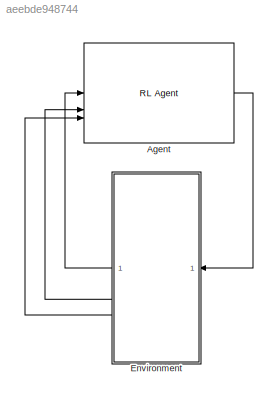
MODEL slx_aeebde948744
KIND model
CONFIG AbsTol = auto
CONFIG EnableMultiTasking = off
CONFIG FixedStep = auto
CONFIG MaxStep = auto
CONFIG MinStep = auto
CONFIG RelTol = 1e-3
CONFIG SampleTimeConstraint = Unconstrained
CONFIG SolverName = VariableStepAuto
CONFIG StartTime = 0.0
CONFIG StopTime = 10
BLOCK [Reference] Agent  REF=rllib/RL Agent
  SourceBlock = rllib/RL Agent
  SourceType = RL Agent
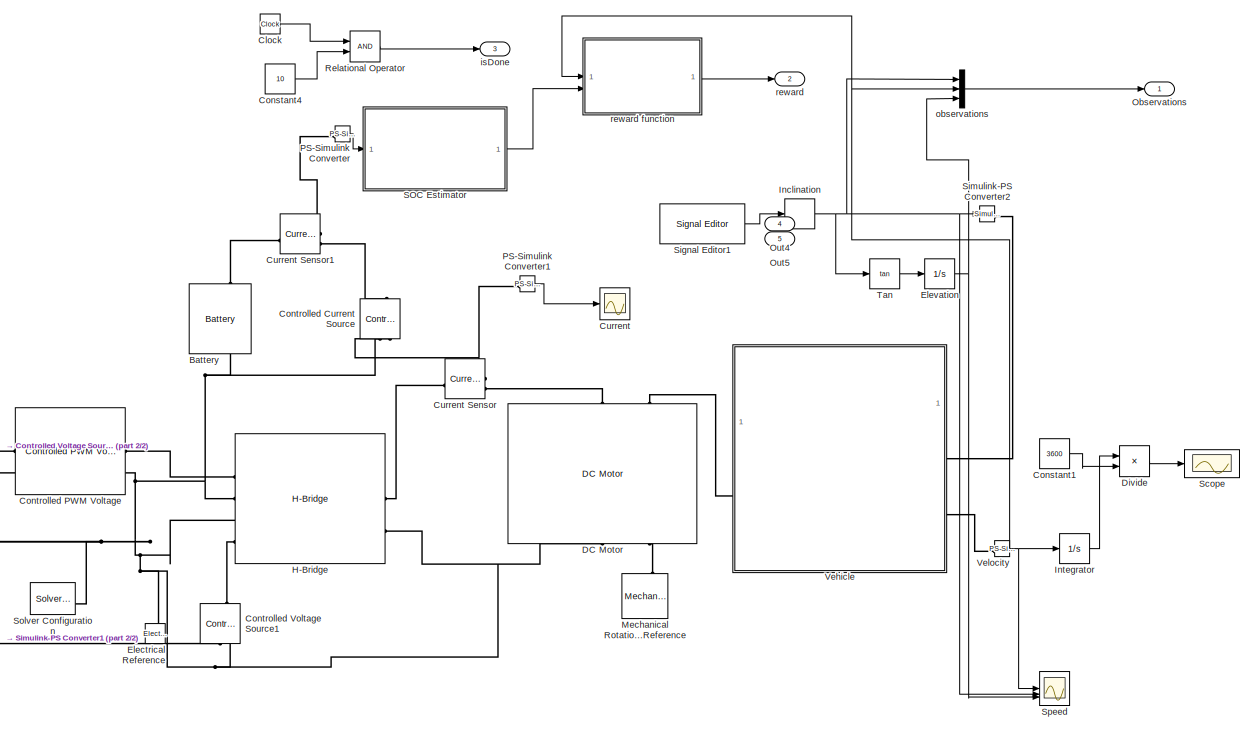
[diagram: Environment - part 1/2, most of the canvas]
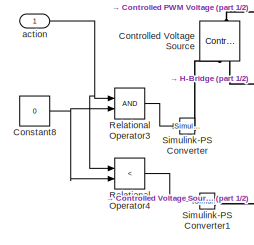
[diagram: Environment - part 2/2, bottom left region]
BLOCK [SubSystem] Environment
BLOCK [Reference] Environment/Battery  REF=batteryecm_lib/Battery
  LibrarySourceBlock = ee_lib/Sources/Battery
  NameLocation = right
  SourceBlock = batteryecm_lib/Battery
  SourceType = Battery
BLOCK [Clock] Environment/Clock
BLOCK [Constant] Environment/Constant1
  Value = 3600
BLOCK [Constant] Environment/Constant4
  Value = 10
BLOCK [Constant] Environment/Constant8
  Value = 0
BLOCK [Reference] Environment/Controlled Current Source  REF=fl_lib/Electrical/Electrical Sources/Controlled Current
Source
  NameLocation = right
  SourceBlock = fl_lib/Electrical/Electrical Sources/Controlled Current\nSource
  SourceType = Controlled Current\nSource
BLOCK [Reference] Environment/Controlled PWM Voltage  REF=ee_lib/Integrated Circuits/Controlled PWM
Voltage
  SourceBlock = ee_lib/Integrated Circuits/Controlled PWM\nVoltage
  SourceType = Controlled PWM\nVoltage
BLOCK [Reference] Environment/Controlled Voltage Source  REF=fl_lib/Electrical/Electrical Sources/Controlled Voltage
Source
  NameLocation = right
  SourceBlock = fl_lib/Electrical/Electrical Sources/Controlled Voltage\nSource
  SourceType = Controlled Voltage\nSource
BLOCK [Reference] Environment/Controlled Voltage Source1  REF=fl_lib/Electrical/Electrical Sources/Controlled Voltage
Source
  NameLocation = right
  SourceBlock = fl_lib/Electrical/Electrical Sources/Controlled Voltage\nSource
  SourceType = Controlled Voltage\nSource
BLOCK [Scope] Environment/Current
  Floating = off
  NumInputPorts = 1
  ScopeSpecificationString = Simulink.scopes.TimeScopeBlockCfg('CurrentConfiguration', extmgr.ConfigurationSet(extmgr.Configuration('Core','General UI',true),extmgr.Configuration('Core','Source UI',true),extmgr.Configuration('Sources','WiredSimulink',true,'DataLoggingVariableName','ScopeData2'),extmgr.Configuration('Visuals','Time Domain',true,'SerializedDisplays',{struct('MinYLimReal','-165.98887','MaxYLimReal','881.02361','...<+1422ch>
BLOCK [Reference] Environment/Current Sensor  REF=fl_lib/Electrical/Electrical Sensors/Current Sensor
  SourceBlock = fl_lib/Electrical/Electrical Sensors/Current Sensor
  SourceType = Current Sensor
BLOCK [Reference] Environment/Current Sensor1  REF=fl_lib/Electrical/Electrical Sensors/Current Sensor
  SourceBlock = fl_lib/Electrical/Electrical Sensors/Current Sensor
  SourceType = Current Sensor
BLOCK [Reference] Environment/DC Motor  REF=ee_lib/Electromechanical/Brushed Motors/DC Motor
  NameLocation = right
  SourceBlock = ee_lib/Electromechanical/Brushed Motors/DC Motor
  SourceType = DC Motor
BLOCK [Product] Environment/Divide
  Inputs = */
BLOCK [Reference] Environment/Electrical Reference  REF=fl_lib/Electrical/Electrical Elements/Electrical Reference
  NameLocation = right
  SourceBlock = fl_lib/Electrical/Electrical Elements/Electrical Reference
  SourceType = Electrical Reference
BLOCK [Integrator] Environment/Elevation
BLOCK [Reference] Environment/H-Bridge  REF=ee_lib/Semiconductors &
Converters/Converters/H-Bridge
  SourceBlock = ee_lib/Semiconductors &\nConverters/Converters/H-Bridge
  SourceType = H-Bridge
BLOCK [FirstOrderHold] Environment/Inclination
  AllowContinuousInput = on
  ErrorTolerance = inf
BLOCK [Integrator] Environment/Integrator
BLOCK [Reference] Environment/Mechanical Rotational Reference  REF=fl_lib/Mechanical/Rotational Elements/Mechanical
Rotational Reference
  NameLocation = right
  SourceBlock = fl_lib/Mechanical/Rotational Elements/Mechanical\nRotational Reference
  SourceType = Mechanical\nRotational Reference
BLOCK [Outport] Environment/Observations
BLOCK [Outport] Environment/Out4
  Port = 4
BLOCK [Outport] Environment/Out5
  Port = 5
BLOCK [Reference] Environment/PS-Simulink Converter  REF=nesl_utility/PS-Simulink
Converter
  SourceBlock = nesl_utility/PS-Simulink\nConverter
  SourceType = PS-Simulink\nConverter
BLOCK [Reference] Environment/PS-Simulink Converter1  REF=nesl_utility/PS-Simulink
Converter
  SourceBlock = nesl_utility/PS-Simulink\nConverter
  SourceType = PS-Simulink\nConverter
BLOCK [RelationalOperator] Environment/Relational Operator
  InputSameDT = off
  OutDataTypeStr = boolean
  RndMeth = Simplest
BLOCK [RelationalOperator] Environment/Relational Operator3
  InputSameDT = off
  OutDataTypeStr = boolean
  RndMeth = Simplest
BLOCK [RelationalOperator] Environment/Relational Operator4
  InputSameDT = off
  Operator = <
  OutDataTypeStr = boolean
  RndMeth = Simplest
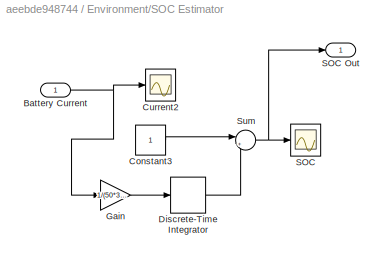
BLOCK [SubSystem] Environment/SOC Estimator
BLOCK [Inport] Environment/SOC Estimator/Battery Current
BLOCK [Constant] Environment/SOC Estimator/Constant3
BLOCK [Scope] Environment/SOC Estimator/Current2
  Floating = off
  NumInputPorts = 1
  ScopeSpecificationString = Simulink.scopes.TimeScopeBlockCfg('CurrentConfiguration', extmgr.ConfigurationSet(extmgr.Configuration('Core','General UI',true),extmgr.Configuration('Core','Source UI',true),extmgr.Configuration('Sources','WiredSimulink',true,'DataLoggingVariableName','ScopeData1'),extmgr.Configuration('Visuals','Time Domain',true,'SerializedDisplays',{struct('MinYLimReal','-165.98887','MaxYLimReal','881.02361','...<+1422ch>
BLOCK [DiscreteIntegrator] Environment/SOC Estimator/Discrete-Time Integrator
  ICPrevOutput = DiscIntNeverNeededParam
  ICPrevScaledInput = DiscIntNeverNeededParam
  InitialConditionSetting = Auto
  SampleTime = 0.01
BLOCK [Gain] Environment/SOC Estimator/Gain
  Gain = 1/(50*3600)
BLOCK [Scope] Environment/SOC Estimator/SOC
  Floating = off
  NumInputPorts = 1
  ScopeSpecificationString = Simulink.scopes.TimeScopeBlockCfg('CurrentConfiguration', extmgr.ConfigurationSet(extmgr.Configuration('Core','General UI',true),extmgr.Configuration('Core','Source UI',true),extmgr.Configuration('Sources','WiredSimulink',true,'DataLoggingVariableName','ScopeData2'),extmgr.Configuration('Visuals','Time Domain',true,'SerializedDisplays',{struct('MinYLimReal','-165.98887','MaxYLimReal','881.02361','...<+1422ch>
BLOCK [Outport] Environment/SOC Estimator/SOC Out
BLOCK [Sum] Environment/SOC Estimator/Sum
  Inputs = |+-
BLOCK [Scope] Environment/Scope
  Floating = off
  NumInputPorts = 1
  ScopeSpecificationString = Simulink.scopes.TimeScopeBlockCfg('CurrentConfiguration', extmgr.ConfigurationSet(extmgr.Configuration('Core','General UI',true),extmgr.Configuration('Core','Source UI',true),extmgr.Configuration('Sources','WiredSimulink',true,'DataLoggingVariableName','ScopeData3'),extmgr.Configuration('Visuals','Time Domain',true,'SerializedDisplays',{struct('MinYLimReal','-0.00051','MaxYLimReal','0.00456','YLab...<+1462ch>
BLOCK [Reference] Environment/Signal Editor1  REF=SignalEditorBlockLib/Signal Editor
  LibrarySourceBlock = simulink/Sources/Signal Editor
  SourceBlock = SignalEditorBlockLib/Signal Editor
  SourceType = SignalEditor
  UserDataPersistent = on
BLOCK [Reference] Environment/Simulink-PS Converter  REF=nesl_utility/Simulink-PS
Converter
  SourceBlock = nesl_utility/Simulink-PS\nConverter
  SourceType = Simulink-PS\nConverter
BLOCK [Reference] Environment/Simulink-PS Converter1  REF=nesl_utility/Simulink-PS
Converter
  SourceBlock = nesl_utility/Simulink-PS\nConverter
  SourceType = Simulink-PS\nConverter
BLOCK [Reference] Environment/Simulink-PS Converter2  REF=nesl_utility/Simulink-PS
Converter
  SourceBlock = nesl_utility/Simulink-PS\nConverter
  SourceType = Simulink-PS\nConverter
BLOCK [Reference] Environment/Solver Configuration  REF=nesl_utility/Solver
Configuration
  SourceBlock = nesl_utility/Solver\nConfiguration
  SourceType = Solver\nConfiguration
BLOCK [Scope] Environment/Speed
  Floating = off
  NumInputPorts = 3
  ScopeSpecificationString = Simulink.scopes.TimeScopeBlockCfg('CurrentConfiguration', extmgr.ConfigurationSet(extmgr.Configuration('Core','General UI',true),extmgr.Configuration('Core','Source UI',true),extmgr.Configuration('Sources','WiredSimulink',true,'DataLoggingVariableName','ScopeData1'),extmgr.Configuration('Visuals','Time Domain',true,'SerializedDisplays',{struct('MinYLimReal','-1.2522','MaxYLimReal','11.25024','YLab...<+1530ch>
BLOCK [Trigonometry] Environment/Tan
  Operator = tan
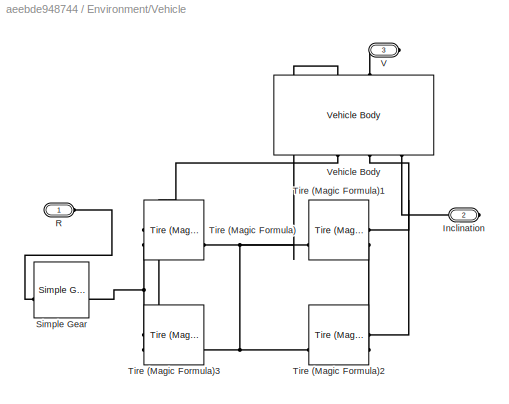
BLOCK [SubSystem] Environment/Vehicle
BLOCK [PMIOPort] Environment/Vehicle/Inclination
  Port = 2
  Side = Right
BLOCK [PMIOPort] Environment/Vehicle/R
  Side = Left
BLOCK [Reference] Environment/Vehicle/Simple Gear  REF=sdl_lib/Gears/Simple Gear
  SourceBlock = sdl_lib/Gears/Simple Gear
  SourceType = Simple Gear
BLOCK [Reference] Environment/Vehicle/Tire (Magic Formula)  REF=sdl_lib/Tires & Vehicles/Tire (Magic Formula)
  SourceBlock = sdl_lib/Tires & Vehicles/Tire (Magic Formula)
  SourceType = Tire (Magic Formula)
BLOCK [Reference] Environment/Vehicle/Tire (Magic Formula)1  REF=sdl_lib/Tires & Vehicles/Tire (Magic Formula)
  SourceBlock = sdl_lib/Tires & Vehicles/Tire (Magic Formula)
  SourceType = Tire (Magic Formula)
BLOCK [Reference] Environment/Vehicle/Tire (Magic Formula)2  REF=sdl_lib/Tires & Vehicles/Tire (Magic Formula)
  SourceBlock = sdl_lib/Tires & Vehicles/Tire (Magic Formula)
  SourceType = Tire (Magic Formula)
BLOCK [Reference] Environment/Vehicle/Tire (Magic Formula)3  REF=sdl_lib/Tires & Vehicles/Tire (Magic Formula)
  SourceBlock = sdl_lib/Tires & Vehicles/Tire (Magic Formula)
  SourceType = Tire (Magic Formula)
BLOCK [PMIOPort] Environment/Vehicle/V
  Port = 3
  Side = Right
BLOCK [Reference] Environment/Vehicle/Vehicle Body  REF=sdl_lib/Tires & Vehicles/Vehicle Body
  NameLocation = right
  SourceBlock = sdl_lib/Tires & Vehicles/Vehicle Body
  SourceType = Vehicle Body
BLOCK [Reference] Environment/Velocity  REF=nesl_utility/PS-Simulink
Converter
  SourceBlock = nesl_utility/PS-Simulink\nConverter
  SourceType = PS-Simulink\nConverter
BLOCK [Inport] Environment/action
BLOCK [Outport] Environment/isDone
  Port = 3
BLOCK [Mux] Environment/observations
  DisplayOption = bar
  Inputs = 3
BLOCK [Outport] Environment/reward
  Port = 2
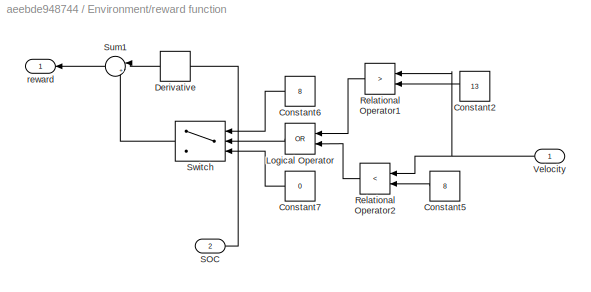
BLOCK [SubSystem] Environment/reward function
BLOCK [Constant] Environment/reward function/Constant2
  Value = 13
BLOCK [Constant] Environment/reward function/Constant5
  Value = 8
BLOCK [Constant] Environment/reward function/Constant6
  Value = 8
BLOCK [Constant] Environment/reward function/Constant7
  Value = 0
BLOCK [Derivative] Environment/reward function/Derivative
BLOCK [Logic] Environment/reward function/Logical Operator
  AllPortsSameDT = off
  NameLocation = top
  Operator = OR
  OutDataTypeStr = boolean
BLOCK [RelationalOperator] Environment/reward function/Relational Operator1
  InputSameDT = off
  Operator = >
  OutDataTypeStr = boolean
  RndMeth = Simplest
BLOCK [RelationalOperator] Environment/reward function/Relational Operator2
  InputSameDT = off
  Operator = <
  OutDataTypeStr = boolean
  RndMeth = Simplest
BLOCK [Inport] Environment/reward function/SOC
  Port = 2
BLOCK [Sum] Environment/reward function/Sum1
  Inputs = |++
BLOCK [Switch] Environment/reward function/Switch
  Criteria = u2 > Threshold
  InputSameDT = off
  SaturateOnIntegerOverflow = off
BLOCK [Inport] Environment/reward function/Velocity
BLOCK [Outport] Environment/reward function/reward
LINE Agent:1 -> Environment:1
LINE Environment/Clock:1 -> Environment/Relational Operator:1
LINE Environment/Constant1:1 -> Environment/Divide:2
LINE Environment/Constant4:1 -> Environment/Relational Operator:2
NET Environment/Constant8:1 -> Environment/Relational Operator3:2, Environment/Relational Operator4:2
LINE Environment/Divide:1 -> Environment/Scope:1
NET Environment/Elevation:1 -> Environment/Speed:3, Environment/observations:3
NET Environment/Inclination:1 -> Environment/Simulink-PS Converter2:1, Environment/Speed:2, Environment/Tan:1, Environment/observations:1
LINE Environment/Integrator:1 -> Environment/Divide:1
LINE Environment/PS-Simulink Converter1:1 -> Environment/Current:1
LINE Environment/PS-Simulink Converter:1 -> Environment/SOC Estimator:1
LINE Environment/Relational Operator3:1 -> Environment/Simulink-PS Converter:1
LINE Environment/Relational Operator4:1 -> Environment/Simulink-PS Converter1:1
LINE Environment/Relational Operator:1 -> Environment/isDone:1
NET Environment/SOC Estimator/Battery Current:1 -> Environment/SOC Estimator/Current2:1, Environment/SOC Estimator/Gain:1
LINE Environment/SOC Estimator/Constant3:1 -> Environment/SOC Estimator/Sum:1
LINE Environment/SOC Estimator/Discrete-Time Integrator:1 -> Environment/SOC Estimator/Sum:2
LINE Environment/SOC Estimator/Gain:1 -> Environment/SOC Estimator/Discrete-Time Integrator:1
NET Environment/SOC Estimator/Sum:1 -> Environment/SOC Estimator/SOC Out:1, Environment/SOC Estimator/SOC:1
LINE Environment/SOC Estimator:1 -> Environment/reward function:2
LINE Environment/Signal Editor1:1 -> Environment/Inclination:1
LINE Environment/Tan:1 -> Environment/Elevation:1
NET Environment/Velocity:1 -> Environment/Integrator:1, Environment/Speed:1, Environment/observations:2, Environment/reward function:1
NET Environment/action:1 -> Environment/Relational Operator3:1, Environment/Relational Operator4:1
LINE Environment/observations:1 -> Environment/Observations:1
LINE Environment/reward function/Constant2:1 -> Environment/reward function/Relational Operator1:2
LINE Environment/reward function/Constant5:1 -> Environment/reward function/Relational Operator2:2
LINE Environment/reward function/Constant6:1 -> Environment/reward function/Switch:1
LINE Environment/reward function/Constant7:1 -> Environment/reward function/Switch:3
LINE Environment/reward function/Derivative:1 -> Environment/reward function/Sum1:1
LINE Environment/reward function/Logical Operator:1 -> Environment/reward function/Switch:2
LINE Environment/reward function/Relational Operator1:1 -> Environment/reward function/Logical Operator:1
LINE Environment/reward function/Relational Operator2:1 -> Environment/reward function/Logical Operator:2
LINE Environment/reward function/SOC:1 -> Environment/reward function/Derivative:1
LINE Environment/reward function/Sum1:1 -> Environment/reward function/reward:1
LINE Environment/reward function/Switch:1 -> Environment/reward function/Sum1:2
NET Environment/reward function/Velocity:1 -> Environment/reward function/Relational Operator1:1, Environment/reward function/Relational Operator2:1
LINE Environment/reward function:1 -> Environment/reward:1
LINE Environment:1 -> Agent:1
LINE Environment:2 -> Agent:2
LINE Environment:3 -> Agent:3
PLINE Environment/Battery:LConn1 -- Environment/Current Sensor1:LConn1
PNET net1: Environment/Battery:RConn1 -- Environment/Controlled Current Source:RConn2 -- Environment/Controlled PWM Voltage:LConn2 -- Environment/Controlled PWM Voltage:RConn2 -- Environment/Controlled Voltage Source1:RConn2 -- Environment/Controlled Voltage Source:RConn2 -- Environment/DC Motor:RConn1 -- Environment/Electrical Reference:LConn1 -- Environment/H-Bridge:LConn2 -- Environment/H-Bridge:LConn3 -- Environment/H-Bridge:RConn2 -- Environment/Solver Configuration:RConn1
PLINE Environment/Controlled Current Source:LConn1 -- Environment/Current Sensor1:RConn2
PNET net2: Environment/Controlled Current Source:RConn1 -- Environment/Current Sensor:RConn1 -- Environment/PS-Simulink Converter1:LConn1
PLINE Environment/Controlled PWM Voltage:LConn1 -- Environment/Controlled Voltage Source:LConn1
PLINE Environment/Controlled PWM Voltage:RConn1 -- Environment/H-Bridge:LConn1
PLINE Environment/Controlled Voltage Source1:LConn1 -- Environment/H-Bridge:LConn4
PLINE Environment/Controlled Voltage Source1:RConn1 -- Environment/Simulink-PS Converter1:RConn1
PLINE Environment/Controlled Voltage Source:RConn1 -- Environment/Simulink-PS Converter:RConn1
PLINE Environment/Current Sensor1:RConn1 -- Environment/PS-Simulink Converter:LConn1
PLINE Environment/Current Sensor:LConn1 -- Environment/H-Bridge:RConn1
PLINE Environment/Current Sensor:RConn2 -- Environment/DC Motor:LConn1
PLINE Environment/DC Motor:LConn2 -- Environment/Vehicle:LConn1
PLINE Environment/DC Motor:RConn2 -- Environment/Mechanical Rotational Reference:LConn1
PLINE Environment/Simulink-PS Converter2:RConn1 -- Environment/Vehicle:RConn1
PLINE Environment/Vehicle/Inclination:RConn1 -- Environment/Vehicle/Vehicle Body:RConn3
PLINE Environment/Vehicle/R:RConn1 -- Environment/Vehicle/Simple Gear:LConn1
PNET net3: Environment/Vehicle/Simple Gear:RConn1 -- Environment/Vehicle/Tire (Magic Formula)3:LConn2 -- Environment/Vehicle/Tire (Magic Formula):LConn2
PNET net4: Environment/Vehicle/Tire (Magic Formula)1:LConn1 -- Environment/Vehicle/Tire (Magic Formula)2:LConn1 -- Environment/Vehicle/Vehicle Body:RConn2
PLINE Environment/Vehicle/Tire (Magic Formula)1:LConn2 -- Environment/Vehicle/Tire (Magic Formula)2:LConn2
PNET net5: Environment/Vehicle/Tire (Magic Formula)1:RConn2 -- Environment/Vehicle/Tire (Magic Formula)2:RConn2 -- Environment/Vehicle/Tire (Magic Formula)3:RConn2 -- Environment/Vehicle/Tire (Magic Formula):RConn2 -- Environment/Vehicle/Vehicle Body:LConn1
PNET net6: Environment/Vehicle/Tire (Magic Formula)3:LConn1 -- Environment/Vehicle/Tire (Magic Formula):LConn1 -- Environment/Vehicle/Vehicle Body:RConn1
PLINE Environment/Vehicle/V:RConn1 -- Environment/Vehicle/Vehicle Body:LConn2
PLINE Environment/Vehicle:RConn2 -- Environment/Velocity:LConn1
note: NET lines group one-source signal fan-out (src -> all destinations, sorted); 1:1 wires keep LINE; PNET lines group multi-terminal physical nets as a canonical sorted terminal list (undirected conserving connections); 2-terminal nets keep the pairwise PLINE form
